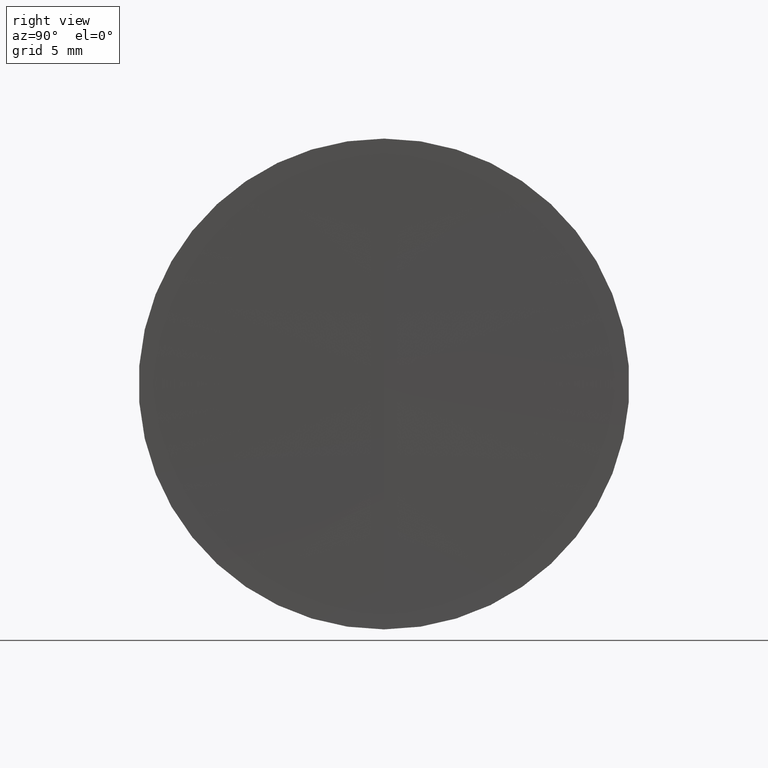
[diagram: clean part render]
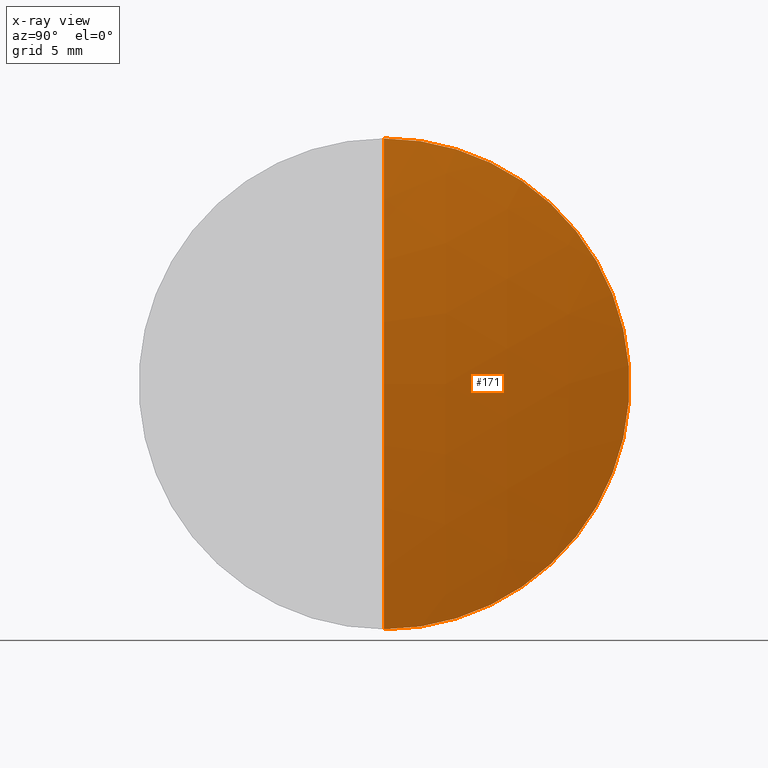
[diagram: x-ray — body ghosted, one internal face saturated and labeled with its STEP entity id]
A machine part, right view, then the same camera in x-ray: the body is ghosted and one INTERNAL B-rep face — a face not visible from any outside direction — is saturated and labeled: STEP entity #171.
In plain terms, the highlighted spherical surface has radius 55.3 mm.
Its self-contained STEP definition (entity closure, byte-faithful):
#8 = DIRECTION ( 'NONE',  ( -0.0000000000000000000, 1.000000000000000000, 1.224646799147353200E-016 ) ) ;
#16 = DIRECTION ( 'NONE',  ( 0.0000000000000000000, 0.0000000000000000000, 1.000000000000000000 ) ) ;
#22 = ORIENTED_EDGE ( 'NONE', *, *, #127, .T. ) ;
#29 = ORIENTED_EDGE ( 'NONE', *, *, #60, .F. ) ;
#34 = DIRECTION ( 'NONE',  ( 0.0000000000000000000, 1.000000000000000000, 0.0000000000000000000 ) ) ;
#42 = ORIENTED_EDGE ( 'NONE', *, *, #94, .F. ) ;
#46 = CARTESIAN_POINT ( 'NONE',  ( 316.1869586626397700, 0.0000000000000000000, 0.0000000000000000000 ) ) ;
#47 = VERTEX_POINT ( 'NONE', #237 ) ;
#48 = AXIS2_PLACEMENT_3D ( 'NONE', #134, #329, #186 ) ;
#52 = CIRCLE ( 'NONE', #58, 55.30000000000001800 ) ;
#58 = AXIS2_PLACEMENT_3D ( 'NONE', #136, #8, #107 ) ;
#60 = EDGE_CURVE ( 'NONE', #211, #64, #150, .T. ) ;
#64 = VERTEX_POINT ( 'NONE', #286 ) ;
#66 = CARTESIAN_POINT ( 'NONE',  ( 316.1869586626397700, 0.0000000000000000000, 12.70000000000000600 ) ) ;
#84 = CARTESIAN_POINT ( 'NONE',  ( 262.3650300461362700, 0.0000000000000000000, 6.963127528203664000E-015 ) ) ;
#94 = EDGE_CURVE ( 'NONE', #47, #211, #292, .T. ) ;
#107 = DIRECTION ( 'NONE',  ( 0.0000000000000000000, -1.224646799147353200E-016, 1.000000000000000000 ) ) ;
#127 = EDGE_CURVE ( 'NONE', #47, #64, #52, .T. ) ;
#134 = CARTESIAN_POINT ( 'NONE',  ( 262.3650300461362700, 0.0000000000000000000, 6.963127528203664000E-015 ) ) ;
#136 = CARTESIAN_POINT ( 'NONE',  ( 262.3650300461362700, 0.0000000000000000000, 6.963127528203664000E-015 ) ) ;
#150 = CIRCLE ( 'NONE', #330, 12.70000000000000600 ) ;
#171 = ADVANCED_FACE ( 'NONE', ( #336 ), #207, .T. ) ;
#185 = AXIS2_PLACEMENT_3D ( 'NONE', #84, #34, #16 ) ;
#186 = DIRECTION ( 'NONE',  ( 0.0000000000000000000, 0.0000000000000000000, -1.000000000000000000 ) ) ;
#202 = DIRECTION ( 'NONE',  ( 0.0000000000000000000, 0.0000000000000000000, 1.000000000000000000 ) ) ;
#207 = SPHERICAL_SURFACE ( 'NONE', #185, 55.30000000000001800 ) ;
#211 = VERTEX_POINT ( 'NONE', #66 ) ;
#234 = DIRECTION ( 'NONE',  ( -1.000000000000000000, -0.0000000000000000000, -0.0000000000000000000 ) ) ;
#237 = CARTESIAN_POINT ( 'NONE',  ( 317.6650300461362800, 0.0000000000000000000, 1.034927592784609700E-014 ) ) ;
#286 = CARTESIAN_POINT ( 'NONE',  ( 316.1869586626397700, 1.555301434917139200E-015, -12.70000000000000600 ) ) ;
#292 = CIRCLE ( 'NONE', #48, 55.30000000000001800 ) ;
#324 = EDGE_LOOP ( 'NONE', ( #42, #22, #29 ) ) ;
#329 = DIRECTION ( 'NONE',  ( 0.0000000000000000000, -1.000000000000000000, 0.0000000000000000000 ) ) ;
#330 = AXIS2_PLACEMENT_3D ( 'NONE', #46, #234, #202 ) ;
#336 = FACE_OUTER_BOUND ( 'NONE', #324, .T. ) ;